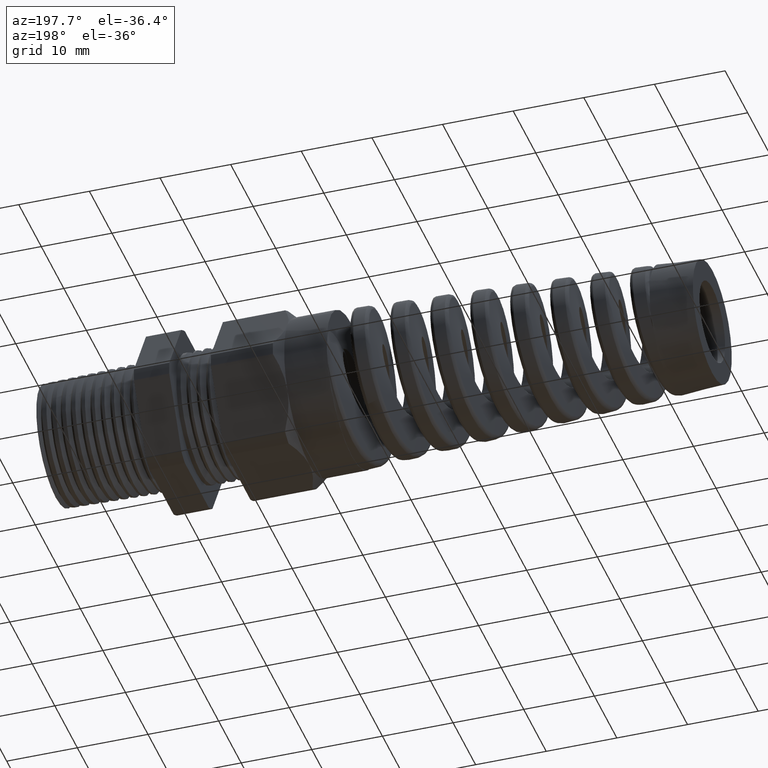
[diagram: clean part render]
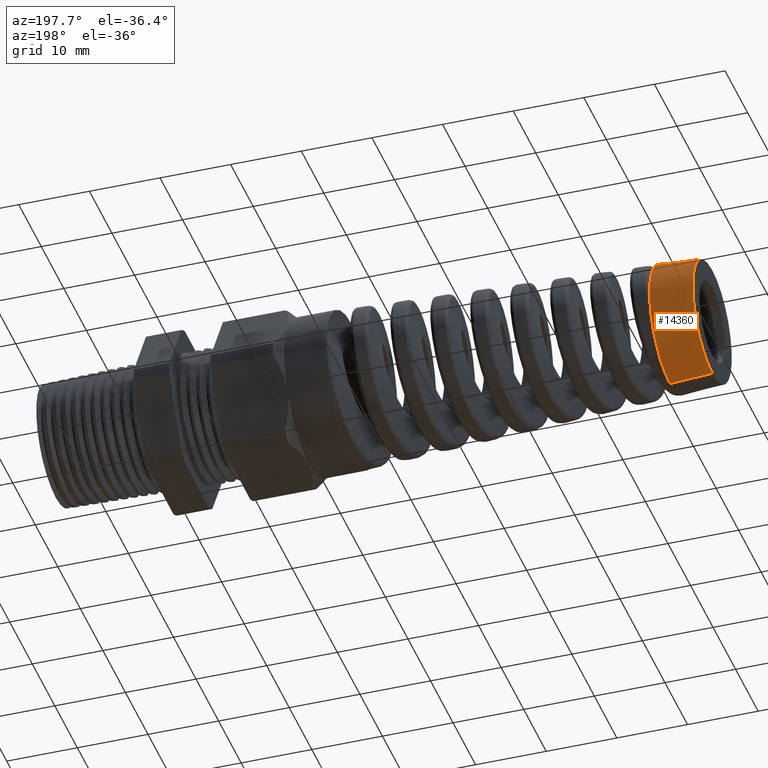
[diagram: same view with one face highlighted and labeled with its STEP entity id]
A machine part, auxiliary view. The second image highlights one B-rep face of the part: STEP entity #14360.
In plain terms, the highlighted conical surface has half-angle 3.5 deg.
Its self-contained STEP definition (entity closure, byte-faithful):
#2173 = CARTESIAN_POINT ( 'NONE',  ( -3.380000472440945400, 0.0000000000000000000, 0.3396143542273857800 ) ) ;
#2362 = CARTESIAN_POINT ( 'NONE',  ( -3.143780000000000000, 0.0000000000000000000, 0.3540622172550593700 ) ) ;
#2381 = CARTESIAN_POINT ( 'NONE',  ( -3.380000472440945400, -4.247543964547433200E-017, -0.3396143542273857800 ) ) ;
#2388 = DIRECTION ( 'NONE',  ( 0.9981347984218669200, -7.476289853398327700E-018, -0.06104853953485701200 ) ) ;
#2389 = VECTOR ( 'NONE', #2388, 39.37007874015748900 ) ;
#2390 = CARTESIAN_POINT ( 'NONE',  ( -3.143780000000000000, -4.336011610604232100E-017, -0.3540622172550593700 ) ) ;
#2391 = LINE ( 'NONE', #2390, #2389 ) ;
#4100 = DIRECTION ( 'NONE',  ( 0.0000000000000000000, 0.0000000000000000000, 1.000000000000000000 ) ) ;
#4101 = DIRECTION ( 'NONE',  ( -1.000000000000000000, 0.0000000000000000000, 0.0000000000000000000 ) ) ;
#4102 = CARTESIAN_POINT ( 'NONE',  ( -3.380000472440945400, 0.0000000000000000000, 0.0000000000000000000 ) ) ;
#4103 = AXIS2_PLACEMENT_3D ( 'NONE', #4102, #4101, #4100 ) ;
#4104 = CIRCLE ( 'NONE', #4103, 0.3396143542273857800 ) ;
#4145 = DIRECTION ( 'NONE',  ( 0.0000000000000000000, 0.0000000000000000000, 1.000000000000000000 ) ) ;
#4146 = DIRECTION ( 'NONE',  ( 1.000000000000000000, 0.0000000000000000000, 0.0000000000000000000 ) ) ;
#4147 = CARTESIAN_POINT ( 'NONE',  ( -3.143780000000000000, 0.0000000000000000000, 0.0000000000000000000 ) ) ;
#4148 = AXIS2_PLACEMENT_3D ( 'NONE', #4147, #4146, #4145 ) ;
#4150 = CONICAL_SURFACE ( 'NONE', #4148, 0.3540622172550593700, 0.06108652381980166800 ) ;
#4151 = FACE_OUTER_BOUND ( 'NONE', #14352, .T. ) ;
#4152 = DIRECTION ( 'NONE',  ( 0.0000000000000000000, 0.0000000000000000000, 1.000000000000000000 ) ) ;
#4153 = DIRECTION ( 'NONE',  ( -1.000000000000000000, 0.0000000000000000000, 0.0000000000000000000 ) ) ;
#4154 = CARTESIAN_POINT ( 'NONE',  ( -3.143780000000000000, 0.0000000000000000000, 0.0000000000000000000 ) ) ;
#4155 = AXIS2_PLACEMENT_3D ( 'NONE', #4154, #4153, #4152 ) ;
#4156 = CIRCLE ( 'NONE', #4155, 0.3540622172550593700 ) ;
#4651 = EDGE_CURVE ( 'NONE', #8435, #8481, #12595, .T. ) ;
#8435 = VERTEX_POINT ( 'NONE', #2173 ) ;
#8481 = VERTEX_POINT ( 'NONE', #2362 ) ;
#8502 = EDGE_CURVE ( 'NONE', #8508, #14729, #2391, .T. ) ;
#8508 = VERTEX_POINT ( 'NONE', #2381 ) ;
#10006 = DIRECTION ( 'NONE',  ( 0.0000000000000000000, 0.0000000000000000000, -1.000000000000000000 ) ) ;
#10007 = DIRECTION ( 'NONE',  ( 1.000000000000000000, 0.0000000000000000000, 0.0000000000000000000 ) ) ;
#10008 = CARTESIAN_POINT ( 'NONE',  ( -3.143780000000000000, 0.0000000000000000000, 0.0000000000000000000 ) ) ;
#10009 = AXIS2_PLACEMENT_3D ( 'NONE', #10008, #10007, #10006 ) ;
#10010 = CIRCLE ( 'NONE', #10009, 0.3540622172550579300 ) ;
#10056 = CARTESIAN_POINT ( 'NONE',  ( -3.143780000000000000, -4.336011610604232100E-017, -0.3540622172550593700 ) ) ;
#10296 = CARTESIAN_POINT ( 'NONE',  ( -3.143780000000000000, 0.2942067495550009800, -0.1969833551441561900 ) ) ;
#12589 = DIRECTION ( 'NONE',  ( 0.9981347984218669200, 0.0000000000000000000, 0.06104853953485701200 ) ) ;
#12591 = VECTOR ( 'NONE', #12589, 39.37007874015748900 ) ;
#12593 = CARTESIAN_POINT ( 'NONE',  ( -3.143780000000000000, 0.0000000000000000000, 0.3540622172550593700 ) ) ;
#12595 = LINE ( 'NONE', #12593, #12591 ) ;
#14342 = EDGE_CURVE ( 'NONE', #8435, #8508, #4104, .T. ) ;
#14344 = ORIENTED_EDGE ( 'NONE', *, *, #4651, .T. ) ;
#14350 = ORIENTED_EDGE ( 'NONE', *, *, #8502, .F. ) ;
#14351 = ORIENTED_EDGE ( 'NONE', *, *, #14342, .F. ) ;
#14352 = EDGE_LOOP ( 'NONE', ( #14350, #14351, #14344, #14359, #14412 ) ) ;
#14358 = EDGE_CURVE ( 'NONE', #8481, #15054, #4156, .T. ) ;
#14359 = ORIENTED_EDGE ( 'NONE', *, *, #14358, .T. ) ;
#14360 = ADVANCED_FACE ( 'NONE', ( #4151 ), #4150, .T. ) ;
#14412 = ORIENTED_EDGE ( 'NONE', *, *, #14703, .F. ) ;
#14703 = EDGE_CURVE ( 'NONE', #14729, #15054, #10010, .T. ) ;
#14729 = VERTEX_POINT ( 'NONE', #10056 ) ;
#15054 = VERTEX_POINT ( 'NONE', #10296 ) ;